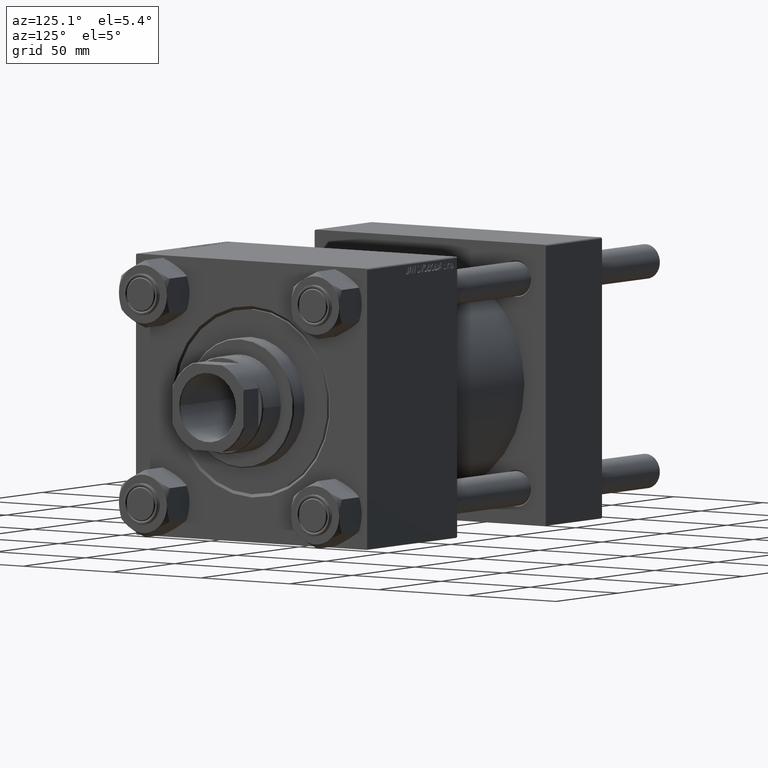
[diagram: clean part render]
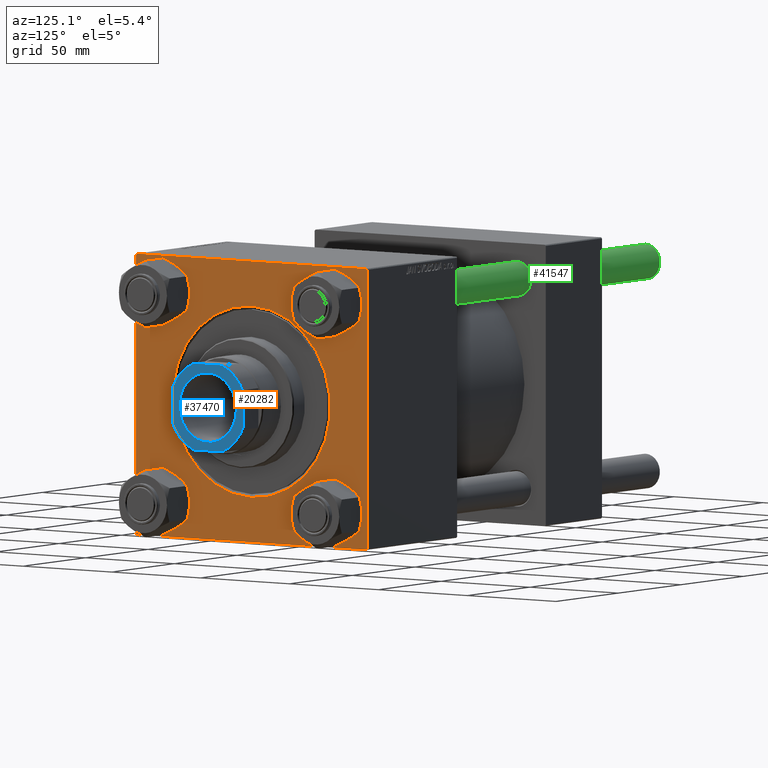
[diagram: same view with three faces highlighted in distinct colors, each labeled with its STEP entity id]
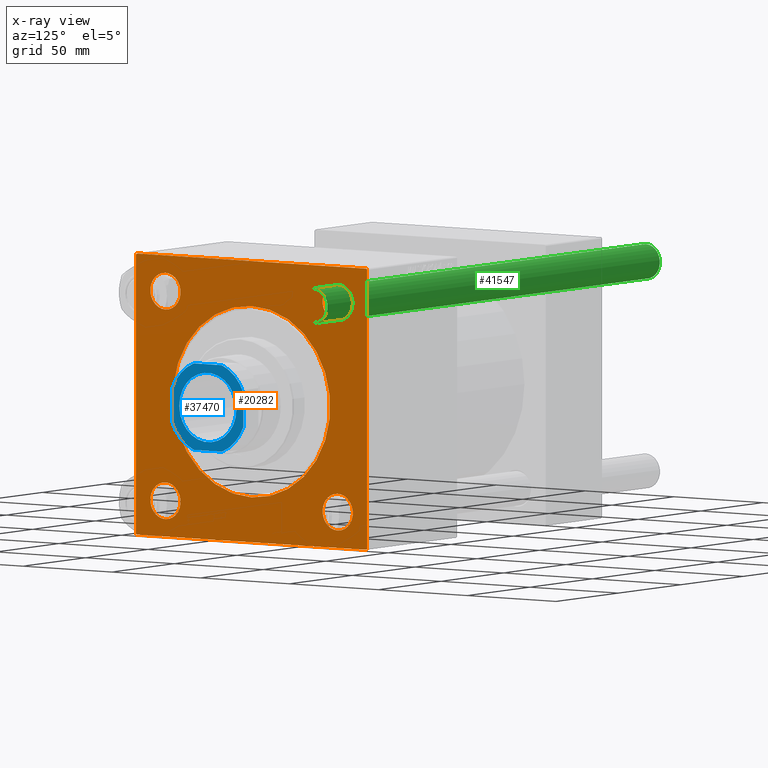
[diagram: x-ray of the same camera — body ghosted, the three highlighted faces saturated]
A machine part, auxiliary view with three faces highlighted in distinct colors.
The next image is the same camera in x-ray (body ghosted, the three faces saturated) — at least one of them is partly hidden behind the body in this view.
Their STEP definitions:

[orange] entity #20282 — the highlighted planar face has unit normal (-1, 0, 0).
#201 = DIRECTION ( 'NONE',  ( 0.000000000000000000, 0.000000000000000000, 1.000000000000000000 ) ) ;
#1098 = CIRCLE ( 'NONE', #7602, 8.499999999999923617 ) ;
#1130 = EDGE_CURVE ( 'NONE', #19694, #46335, #16287, .T. ) ;
#1205 = CARTESIAN_POINT ( 'NONE',  ( 188.0000000000000000, 0.000000000000000000, 0.000000000000000000 ) ) ;
#1799 = LINE ( 'NONE', #9942, #2994 ) ;
#1960 = DIRECTION ( 'NONE',  ( 0.000000000000000000, 0.000000000000000000, 1.000000000000000000 ) ) ;
#2092 = FACE_BOUND ( 'NONE', #37110, .T. ) ;
#2112 = CIRCLE ( 'NONE', #47588, 8.499999999999923617 ) ;
#2642 = VERTEX_POINT ( 'NONE', #31743 ) ;
#2658 = AXIS2_PLACEMENT_3D ( 'NONE', #38136, #3277, #18816 ) ;
#2994 = VECTOR ( 'NONE', #48610, 999.9999999999998863 ) ;
#3277 = DIRECTION ( 'NONE',  ( -1.000000000000000000, 0.000000000000000000, -0.000000000000000000 ) ) ;
#3331 = ORIENTED_EDGE ( 'NONE', *, *, #41484, .T. ) ;
#3597 = ORIENTED_EDGE ( 'NONE', *, *, #17213, .T. ) ;
#3835 = CARTESIAN_POINT ( 'NONE',  ( 188.0000000000000000, -48.44999999999999574, -48.45000000000003126 ) ) ;
#3882 = EDGE_LOOP ( 'NONE', ( #26951, #6696 ) ) ;
#4296 = ORIENTED_EDGE ( 'NONE', *, *, #35313, .T. ) ;
#4464 = ORIENTED_EDGE ( 'NONE', *, *, #11329, .F. ) ;
#4532 = DIRECTION ( 'NONE',  ( -1.000000000000000000, 0.000000000000000000, -0.000000000000000000 ) ) ;
#5250 = EDGE_CURVE ( 'NONE', #46935, #7343, #12743, .T. ) ;
#5371 = ORIENTED_EDGE ( 'NONE', *, *, #26042, .F. ) ;
#5759 = VECTOR ( 'NONE', #33260, 1000.000000000000000 ) ;
#5974 = VERTEX_POINT ( 'NONE', #17187 ) ;
#6082 = ORIENTED_EDGE ( 'NONE', *, *, #1130, .T. ) ;
#6139 = DIRECTION ( 'NONE',  ( 0.000000000000000000, 0.000000000000000000, 1.000000000000000000 ) ) ;
#6188 = CIRCLE ( 'NONE', #15951, 44.24999999999998579 ) ;
#6529 = CARTESIAN_POINT ( 'NONE',  ( 188.0000000000000000, 0.000000000000000000, -44.24999999999998579 ) ) ;
#6696 = ORIENTED_EDGE ( 'NONE', *, *, #42713, .T. ) ;
#6906 = ORIENTED_EDGE ( 'NONE', *, *, #9727, .T. ) ;
#7343 = VERTEX_POINT ( 'NONE', #37276 ) ;
#7602 = AXIS2_PLACEMENT_3D ( 'NONE', #32844, #24961, #8940 ) ;
#7996 = EDGE_LOOP ( 'NONE', ( #3331, #3597 ) ) ;
#8940 = DIRECTION ( 'NONE',  ( 0.000000000000000000, 0.000000000000000000, 1.000000000000000000 ) ) ;
#9242 = VERTEX_POINT ( 'NONE', #49786 ) ;
#9342 = DIRECTION ( 'NONE',  ( -1.000000000000000000, 0.000000000000000000, -0.000000000000000000 ) ) ;
#9727 = EDGE_CURVE ( 'NONE', #39888, #46935, #1799, .T. ) ;
#9942 = CARTESIAN_POINT ( 'NONE',  ( 188.0000000000000000, -64.99999999999998579, 64.50000000000008527 ) ) ;
#10225 = CARTESIAN_POINT ( 'NONE',  ( 188.0000000000000000, 0.000000000000000000, 0.000000000000000000 ) ) ;
#10269 = EDGE_LOOP ( 'NONE', ( #43818, #47771 ) ) ;
#10271 = CARTESIAN_POINT ( 'NONE',  ( 188.0000000000000000, 48.45000000000000995, 48.45000000000001705 ) ) ;
#10564 = CARTESIAN_POINT ( 'NONE',  ( 188.0000000000000000, 65.00000000000002842, -64.50000000000001421 ) ) ;
#10715 = ORIENTED_EDGE ( 'NONE', *, *, #11340, .T. ) ;
#10770 = LINE ( 'NONE', #17918, #41249 ) ;
#11282 = DIRECTION ( 'NONE',  ( 0.000000000000000000, 0.7071067811865279218, -0.7071067811865672237 ) ) ;
#11329 = EDGE_CURVE ( 'NONE', #19694, #41541, #10770, .T. ) ;
#11340 = EDGE_CURVE ( 'NONE', #46335, #39888, #41309, .T. ) ;
#11615 = DIRECTION ( 'NONE',  ( -1.000000000000000000, 0.000000000000000000, -0.000000000000000000 ) ) ;
#11886 = AXIS2_PLACEMENT_3D ( 'NONE', #3835, #34635, #42772 ) ;
#12618 = FACE_BOUND ( 'NONE', #3882, .T. ) ;
#12743 = LINE ( 'NONE', #42775, #26432 ) ;
#13331 = ORIENTED_EDGE ( 'NONE', *, *, #27420, .T. ) ;
#14079 = VECTOR ( 'NONE', #39439, 1000.000000000000000 ) ;
#14506 = AXIS2_PLACEMENT_3D ( 'NONE', #41734, #25475, #6139 ) ;
#14690 = DIRECTION ( 'NONE',  ( -1.000000000000000000, 0.000000000000000000, -0.000000000000000000 ) ) ;
#15458 = VERTEX_POINT ( 'NONE', #30278 ) ;
#15920 = CARTESIAN_POINT ( 'NONE',  ( 188.0000000000000000, -64.99999999999998579, 64.50000000000008527 ) ) ;
#15951 = AXIS2_PLACEMENT_3D ( 'NONE', #1205, #9342, #1960 ) ;
#15977 = CARTESIAN_POINT ( 'NONE',  ( 188.0000000000000000, -48.44999999999999574, 48.45000000000003126 ) ) ;
#16178 = DIRECTION ( 'NONE',  ( -1.000000000000000000, 0.000000000000000000, -0.000000000000000000 ) ) ;
#16287 = LINE ( 'NONE', #23682, #14079 ) ;
#17187 = CARTESIAN_POINT ( 'NONE',  ( 188.0000000000000000, 48.45000000000000995, 56.94999999999993889 ) ) ;
#17213 = EDGE_CURVE ( 'NONE', #5974, #32960, #42162, .T. ) ;
#17918 = CARTESIAN_POINT ( 'NONE',  ( 188.0000000000000000, 65.00000000000002842, 65.00000000000001421 ) ) ;
#17985 = ORIENTED_EDGE ( 'NONE', *, *, #29116, .T. ) ;
#17986 = CARTESIAN_POINT ( 'NONE',  ( 188.0000000000000000, 65.00000000000002842, -64.99999999999998579 ) ) ;
#18271 = DIRECTION ( 'NONE',  ( 0.000000000000000000, 0.000000000000000000, 1.000000000000000000 ) ) ;
#18538 = VECTOR ( 'NONE', #19719, 1000.000000000000000 ) ;
#18816 = DIRECTION ( 'NONE',  ( 0.000000000000000000, 0.000000000000000000, 1.000000000000000000 ) ) ;
#19631 = DIRECTION ( 'NONE',  ( 0.000000000000000000, 0.000000000000000000, -1.000000000000000000 ) ) ;
#19694 = VERTEX_POINT ( 'NONE', #31525 ) ;
#19714 = CIRCLE ( 'NONE', #22149, 8.499999999999923617 ) ;
#19719 = DIRECTION ( 'NONE',  ( -0.000000000000000000, 0.7071067811865671127, 0.7071067811865279218 ) ) ;
#20269 = FACE_BOUND ( 'NONE', #24676, .T. ) ;
#20282 = ADVANCED_FACE ( 'NONE', ( #12618, #2092, #29574, #20269, #45091, #25011 ), #32889, .F. ) ;
#20439 = VERTEX_POINT ( 'NONE', #31331 ) ;
#20685 = VERTEX_POINT ( 'NONE', #35842 ) ;
#20959 = VECTOR ( 'NONE', #21993, 1000.000000000000000 ) ;
#21745 = CARTESIAN_POINT ( 'NONE',  ( 188.0000000000000000, 65.00000000000002842, 65.00000000000001421 ) ) ;
#21941 = AXIS2_PLACEMENT_3D ( 'NONE', #10225, #41273, #37452 ) ;
#21993 = DIRECTION ( 'NONE',  ( 0.000000000000000000, -1.000000000000000000, -1.067522139062650425E-16 ) ) ;
#22149 = AXIS2_PLACEMENT_3D ( 'NONE', #15977, #4532, #201 ) ;
#22313 = LINE ( 'NONE', #17986, #5759 ) ;
#23135 = ORIENTED_EDGE ( 'NONE', *, *, #31579, .T. ) ;
#23682 = CARTESIAN_POINT ( 'NONE',  ( 188.0000000000000000, 64.50000000000005684, 65.00000000000001421 ) ) ;
#24676 = EDGE_LOOP ( 'NONE', ( #42390, #23135 ) ) ;
#24677 = CIRCLE ( 'NONE', #39313, 44.24999999999998579 ) ;
#24961 = DIRECTION ( 'NONE',  ( -1.000000000000000000, 0.000000000000000000, -0.000000000000000000 ) ) ;
#25011 = FACE_OUTER_BOUND ( 'NONE', #29803, .T. ) ;
#25475 = DIRECTION ( 'NONE',  ( -1.000000000000000000, 0.000000000000000000, -0.000000000000000000 ) ) ;
#26042 = EDGE_CURVE ( 'NONE', #34308, #41234, #22313, .T. ) ;
#26302 = DIRECTION ( 'NONE',  ( 0.000000000000000000, 0.000000000000000000, -1.000000000000000000 ) ) ;
#26432 = VECTOR ( 'NONE', #19631, 1000.000000000000000 ) ;
#26951 = ORIENTED_EDGE ( 'NONE', *, *, #28934, .T. ) ;
#27323 = CIRCLE ( 'NONE', #11886, 8.499999999999923617 ) ;
#27420 = EDGE_CURVE ( 'NONE', #7343, #41234, #43076, .T. ) ;
#27634 = CARTESIAN_POINT ( 'NONE',  ( 188.0000000000000000, 48.45000000000000995, 39.95000000000008811 ) ) ;
#28685 = CIRCLE ( 'NONE', #47341, 8.499999999999923617 ) ;
#28934 = EDGE_CURVE ( 'NONE', #15458, #36130, #49795, .T. ) ;
#29116 = EDGE_CURVE ( 'NONE', #40505, #9242, #28685, .T. ) ;
#29372 = DIRECTION ( 'NONE',  ( -1.000000000000000000, 0.000000000000000000, -0.000000000000000000 ) ) ;
#29444 = ORIENTED_EDGE ( 'NONE', *, *, #49919, .T. ) ;
#29574 = FACE_BOUND ( 'NONE', #7996, .T. ) ;
#29803 = EDGE_LOOP ( 'NONE', ( #32452, #13331, #5371, #29444, #4464, #6082, #10715, #6906 ) ) ;
#30278 = CARTESIAN_POINT ( 'NONE',  ( 188.0000000000000000, -48.44999999999999574, -56.94999999999995310 ) ) ;
#30712 = CARTESIAN_POINT ( 'NONE',  ( 188.0000000000000000, 48.45000000000000995, -48.45000000000001705 ) ) ;
#30872 = CARTESIAN_POINT ( 'NONE',  ( 188.0000000000000000, -64.50000000000002842, -65.00000000000001421 ) ) ;
#31331 = CARTESIAN_POINT ( 'NONE',  ( 188.0000000000000000, -48.44999999999999574, 39.95000000000010232 ) ) ;
#31525 = CARTESIAN_POINT ( 'NONE',  ( 188.0000000000000000, 65.00000000000002842, 64.50000000000001421 ) ) ;
#31579 = EDGE_CURVE ( 'NONE', #2642, #20439, #19714, .T. ) ;
#31743 = CARTESIAN_POINT ( 'NONE',  ( 188.0000000000000000, -48.44999999999999574, 56.94999999999995310 ) ) ;
#32452 = ORIENTED_EDGE ( 'NONE', *, *, #5250, .T. ) ;
#32844 = CARTESIAN_POINT ( 'NONE',  ( 188.0000000000000000, 48.45000000000000995, -48.45000000000001705 ) ) ;
#32889 = PLANE ( 'NONE',  #21941 ) ;
#32960 = VERTEX_POINT ( 'NONE', #27634 ) ;
#33260 = DIRECTION ( 'NONE',  ( 0.000000000000000000, -1.000000000000000000, -2.135044278125300850E-16 ) ) ;
#34308 = VERTEX_POINT ( 'NONE', #48406 ) ;
#34635 = DIRECTION ( 'NONE',  ( -1.000000000000000000, 0.000000000000000000, -0.000000000000000000 ) ) ;
#34901 = CARTESIAN_POINT ( 'NONE',  ( 188.0000000000000000, 48.45000000000000995, -39.95000000000008811 ) ) ;
#35106 = CARTESIAN_POINT ( 'NONE',  ( 188.0000000000000000, -64.50000000000008527, 65.00000000000000000 ) ) ;
#35313 = EDGE_CURVE ( 'NONE', #9242, #40505, #1098, .T. ) ;
#35508 = CARTESIAN_POINT ( 'NONE',  ( 188.0000000000000000, -64.50000000000002842, -65.00000000000001421 ) ) ;
#35587 = EDGE_CURVE ( 'NONE', #41002, #20685, #24677, .T. ) ;
#35842 = CARTESIAN_POINT ( 'NONE',  ( 188.0000000000000000, 5.419062086227035828E-15, 44.24999999999998579 ) ) ;
#36130 = VERTEX_POINT ( 'NONE', #41948 ) ;
#36655 = VECTOR ( 'NONE', #11282, 1000.000000000000000 ) ;
#37110 = EDGE_LOOP ( 'NONE', ( #4296, #17985 ) ) ;
#37276 = CARTESIAN_POINT ( 'NONE',  ( 188.0000000000000000, -64.99999999999998579, -64.50000000000002842 ) ) ;
#37452 = DIRECTION ( 'NONE',  ( -0.000000000000000000, 0.000000000000000000, 1.000000000000000000 ) ) ;
#37498 = DIRECTION ( 'NONE',  ( 0.000000000000000000, 0.000000000000000000, 1.000000000000000000 ) ) ;
#38136 = CARTESIAN_POINT ( 'NONE',  ( 188.0000000000000000, -48.44999999999999574, -48.45000000000003126 ) ) ;
#39143 = EDGE_CURVE ( 'NONE', #20439, #2642, #41011, .T. ) ;
#39313 = AXIS2_PLACEMENT_3D ( 'NONE', #40506, #16178, #42900 ) ;
#39439 = DIRECTION ( 'NONE',  ( 0.000000000000000000, -0.7071067811865279218, 0.7071067811865671127 ) ) ;
#39888 = VERTEX_POINT ( 'NONE', #35106 ) ;
#40505 = VERTEX_POINT ( 'NONE', #34901 ) ;
#40506 = CARTESIAN_POINT ( 'NONE',  ( 188.0000000000000000, 0.000000000000000000, 0.000000000000000000 ) ) ;
#41002 = VERTEX_POINT ( 'NONE', #6529 ) ;
#41011 = CIRCLE ( 'NONE', #44288, 8.499999999999923617 ) ;
#41234 = VERTEX_POINT ( 'NONE', #35508 ) ;
#41249 = VECTOR ( 'NONE', #26302, 1000.000000000000000 ) ;
#41273 = DIRECTION ( 'NONE',  ( -1.000000000000000000, 0.000000000000000000, -0.000000000000000000 ) ) ;
#41309 = LINE ( 'NONE', #21745, #20959 ) ;
#41484 = EDGE_CURVE ( 'NONE', #32960, #5974, #2112, .T. ) ;
#41541 = VERTEX_POINT ( 'NONE', #47326 ) ;
#41734 = CARTESIAN_POINT ( 'NONE',  ( 188.0000000000000000, 48.45000000000000995, 48.45000000000001705 ) ) ;
#41948 = CARTESIAN_POINT ( 'NONE',  ( 188.0000000000000000, -48.44999999999999574, -39.95000000000010232 ) ) ;
#42020 = EDGE_CURVE ( 'NONE', #20685, #41002, #6188, .T. ) ;
#42162 = CIRCLE ( 'NONE', #14506, 8.499999999999923617 ) ;
#42390 = ORIENTED_EDGE ( 'NONE', *, *, #39143, .T. ) ;
#42649 = DIRECTION ( 'NONE',  ( 0.000000000000000000, 0.000000000000000000, 1.000000000000000000 ) ) ;
#42713 = EDGE_CURVE ( 'NONE', #36130, #15458, #27323, .T. ) ;
#42772 = DIRECTION ( 'NONE',  ( 0.000000000000000000, 0.000000000000000000, 1.000000000000000000 ) ) ;
#42775 = CARTESIAN_POINT ( 'NONE',  ( 188.0000000000000000, -64.99999999999998579, 65.00000000000000000 ) ) ;
#42900 = DIRECTION ( 'NONE',  ( 0.000000000000000000, 0.000000000000000000, 1.000000000000000000 ) ) ;
#43076 = LINE ( 'NONE', #30872, #36655 ) ;
#43818 = ORIENTED_EDGE ( 'NONE', *, *, #35587, .T. ) ;
#44288 = AXIS2_PLACEMENT_3D ( 'NONE', #45244, #14690, #18271 ) ;
#45091 = FACE_BOUND ( 'NONE', #10269, .T. ) ;
#45244 = CARTESIAN_POINT ( 'NONE',  ( 188.0000000000000000, -48.44999999999999574, 48.45000000000003126 ) ) ;
#45427 = LINE ( 'NONE', #10564, #18538 ) ;
#46335 = VERTEX_POINT ( 'NONE', #48577 ) ;
#46935 = VERTEX_POINT ( 'NONE', #15920 ) ;
#47326 = CARTESIAN_POINT ( 'NONE',  ( 188.0000000000000000, 65.00000000000002842, -64.50000000000001421 ) ) ;
#47341 = AXIS2_PLACEMENT_3D ( 'NONE', #30712, #11615, #42649 ) ;
#47588 = AXIS2_PLACEMENT_3D ( 'NONE', #10271, #29372, #37498 ) ;
#47771 = ORIENTED_EDGE ( 'NONE', *, *, #42020, .T. ) ;
#48406 = CARTESIAN_POINT ( 'NONE',  ( 188.0000000000000000, 64.50000000000002842, -64.99999999999998579 ) ) ;
#48577 = CARTESIAN_POINT ( 'NONE',  ( 188.0000000000000000, 64.50000000000005684, 65.00000000000001421 ) ) ;
#48610 = DIRECTION ( 'NONE',  ( -0.000000000000000000, -0.7071067811865376918, -0.7071067811865574537 ) ) ;
#49786 = CARTESIAN_POINT ( 'NONE',  ( 188.0000000000000000, 48.45000000000000995, -56.94999999999993889 ) ) ;
#49795 = CIRCLE ( 'NONE', #2658, 8.499999999999923617 ) ;
#49919 = EDGE_CURVE ( 'NONE', #34308, #41541, #45427, .T. ) ;

[blue] entity #37470 — the highlighted planar face has unit normal (1, 0, -0).
#750 = DIRECTION ( 'NONE',  ( 0.000000000000000000, -0.000000000000000000, -1.000000000000000000 ) ) ;
#2476 = CIRCLE ( 'NONE', #17930, 21.50000000000001066 ) ;
#2534 = DIRECTION ( 'NONE',  ( 1.734723475976807094E-16, -1.000000000000000000, 0.000000000000000000 ) ) ;
#4815 = CARTESIAN_POINT ( 'NONE',  ( 0.000000000000000000, 0.000000000000000000, 178.0000000000000284 ) ) ;
#5056 = DIRECTION ( 'NONE',  ( 1.000000000000000000, 0.000000000000000000, 0.000000000000000000 ) ) ;
#5229 = VERTEX_POINT ( 'NONE', #31330 ) ;
#5778 = CARTESIAN_POINT ( 'NONE',  ( 0.000000000000000000, 0.000000000000000000, 178.0000000000000284 ) ) ;
#6623 = AXIS2_PLACEMENT_3D ( 'NONE', #11630, #27153, #42667 ) ;
#7334 = ORIENTED_EDGE ( 'NONE', *, *, #26202, .T. ) ;
#7625 = DIRECTION ( 'NONE',  ( 1.000000000000000000, 0.000000000000000000, 0.000000000000000000 ) ) ;
#7851 = CIRCLE ( 'NONE', #29827, 16.05000000000000782 ) ;
#8048 = VERTEX_POINT ( 'NONE', #17061 ) ;
#8063 = EDGE_LOOP ( 'NONE', ( #26466, #7334, #19994, #25741, #8916, #12696, #37254, #50151 ) ) ;
#8217 = DIRECTION ( 'NONE',  ( 1.000000000000000000, 0.000000000000000000, 0.000000000000000000 ) ) ;
#8263 = CIRCLE ( 'NONE', #6623, 16.05000000000000782 ) ;
#8916 = ORIENTED_EDGE ( 'NONE', *, *, #38285, .T. ) ;
#10675 = LINE ( 'NONE', #41713, #18281 ) ;
#11061 = PLANE ( 'NONE',  #34481 ) ;
#11209 = CIRCLE ( 'NONE', #33163, 21.49999999999996447 ) ;
#11374 = DIRECTION ( 'NONE',  ( 1.000000000000000000, 0.000000000000000000, 0.000000000000000000 ) ) ;
#11630 = CARTESIAN_POINT ( 'NONE',  ( 0.000000000000000000, 0.000000000000000000, 178.0000000000000284 ) ) ;
#12696 = ORIENTED_EDGE ( 'NONE', *, *, #47694, .T. ) ;
#13662 = CARTESIAN_POINT ( 'NONE',  ( -7.889866919029745240, -20.00000000000000000, 178.0000000000000284 ) ) ;
#13668 = VERTEX_POINT ( 'NONE', #13662 ) ;
#14037 = DIRECTION ( 'NONE',  ( 1.000000000000000000, 0.000000000000000000, 0.000000000000000000 ) ) ;
#15031 = VERTEX_POINT ( 'NONE', #39005 ) ;
#15612 = DIRECTION ( 'NONE',  ( 1.000000000000000000, 0.000000000000000000, 0.000000000000000000 ) ) ;
#16356 = EDGE_CURVE ( 'NONE', #8048, #5229, #11209, .T. ) ;
#17061 = CARTESIAN_POINT ( 'NONE',  ( 7.889866919029648429, -20.00000000000000000, 178.0000000000000284 ) ) ;
#17293 = LINE ( 'NONE', #32815, #17588 ) ;
#17352 = VERTEX_POINT ( 'NONE', #30545 ) ;
#17588 = VECTOR ( 'NONE', #28507, 1000.000000000000000 ) ;
#17930 = AXIS2_PLACEMENT_3D ( 'NONE', #5778, #32998, #21308 ) ;
#18214 = VECTOR ( 'NONE', #14037, 1000.000000000000000 ) ;
#18281 = VECTOR ( 'NONE', #2534, 1000.000000000000000 ) ;
#19994 = ORIENTED_EDGE ( 'NONE', *, *, #31866, .T. ) ;
#21308 = DIRECTION ( 'NONE',  ( 1.000000000000000000, 0.000000000000000000, 0.000000000000000000 ) ) ;
#22782 = FACE_OUTER_BOUND ( 'NONE', #8063, .T. ) ;
#22841 = CARTESIAN_POINT ( 'NONE',  ( 0.000000000000000000, 0.000000000000000000, 178.0000000000000284 ) ) ;
#23272 = CARTESIAN_POINT ( 'NONE',  ( 0.000000000000000000, 0.000000000000000000, 178.0000000000000284 ) ) ;
#24440 = EDGE_CURVE ( 'NONE', #38400, #46957, #8263, .T. ) ;
#25741 = ORIENTED_EDGE ( 'NONE', *, *, #31403, .T. ) ;
#26058 = ORIENTED_EDGE ( 'NONE', *, *, #43796, .T. ) ;
#26202 = EDGE_CURVE ( 'NONE', #26532, #17352, #2476, .T. ) ;
#26466 = ORIENTED_EDGE ( 'NONE', *, *, #46323, .T. ) ;
#26532 = VERTEX_POINT ( 'NONE', #42069 ) ;
#26604 = AXIS2_PLACEMENT_3D ( 'NONE', #22841, #33339, #11374 ) ;
#27153 = DIRECTION ( 'NONE',  ( 0.000000000000000000, -0.000000000000000000, -1.000000000000000000 ) ) ;
#28507 = DIRECTION ( 'NONE',  ( -1.734723475976807094E-16, 1.000000000000000000, -0.000000000000000000 ) ) ;
#29827 = AXIS2_PLACEMENT_3D ( 'NONE', #4815, #750, #5056 ) ;
#30545 = CARTESIAN_POINT ( 'NONE',  ( 7.889866919029781656, 20.00000000000000000, 178.0000000000000284 ) ) ;
#31037 = CARTESIAN_POINT ( 'NONE',  ( 0.000000000000000000, 0.000000000000000000, 178.0000000000000284 ) ) ;
#31330 = CARTESIAN_POINT ( 'NONE',  ( 20.00000000000000000, -7.889866919029643100, 178.0000000000000284 ) ) ;
#31403 = EDGE_CURVE ( 'NONE', #15031, #44642, #33512, .T. ) ;
#31866 = EDGE_CURVE ( 'NONE', #17352, #15031, #34024, .T. ) ;
#32674 = VECTOR ( 'NONE', #34269, 1000.000000000000000 ) ;
#32815 = CARTESIAN_POINT ( 'NONE',  ( 19.99999999999999645, 20.00000000000000000, 178.0000000000000284 ) ) ;
#32998 = DIRECTION ( 'NONE',  ( -0.000000000000000000, 0.000000000000000000, 1.000000000000000000 ) ) ;
#33163 = AXIS2_PLACEMENT_3D ( 'NONE', #31037, #46055, #7625 ) ;
#33248 = CARTESIAN_POINT ( 'NONE',  ( -20.00000000000000000, -7.889866919029748793, 178.0000000000000284 ) ) ;
#33339 = DIRECTION ( 'NONE',  ( -0.000000000000000000, 0.000000000000000000, 1.000000000000000000 ) ) ;
#33392 = CARTESIAN_POINT ( 'NONE',  ( -19.99999999999999645, -20.00000000000000000, 178.0000000000000284 ) ) ;
#33512 = CIRCLE ( 'NONE', #37569, 21.50000000000000000 ) ;
#34024 = LINE ( 'NONE', #41392, #32674 ) ;
#34269 = DIRECTION ( 'NONE',  ( -1.000000000000000000, -0.000000000000000000, -0.000000000000000000 ) ) ;
#34481 = AXIS2_PLACEMENT_3D ( 'NONE', #23272, #38779, #15612 ) ;
#34769 = CARTESIAN_POINT ( 'NONE',  ( -16.05000000000000782, 1.965558112631502993E-15, 178.0000000000000284 ) ) ;
#35769 = EDGE_CURVE ( 'NONE', #13668, #8048, #41758, .T. ) ;
#36183 = EDGE_LOOP ( 'NONE', ( #43629, #26058 ) ) ;
#36881 = CARTESIAN_POINT ( 'NONE',  ( 0.000000000000000000, 0.000000000000000000, 178.0000000000000284 ) ) ;
#37254 = ORIENTED_EDGE ( 'NONE', *, *, #35769, .T. ) ;
#37470 = ADVANCED_FACE ( 'NONE', ( #42854, #22782 ), #11061, .T. ) ;
#37569 = AXIS2_PLACEMENT_3D ( 'NONE', #36881, #40945, #8217 ) ;
#38285 = EDGE_CURVE ( 'NONE', #44642, #40253, #10675, .T. ) ;
#38400 = VERTEX_POINT ( 'NONE', #42470 ) ;
#38779 = DIRECTION ( 'NONE',  ( -0.000000000000000000, 0.000000000000000000, 1.000000000000000000 ) ) ;
#39005 = CARTESIAN_POINT ( 'NONE',  ( -7.889866919029755898, 20.00000000000000000, 178.0000000000000284 ) ) ;
#40253 = VERTEX_POINT ( 'NONE', #33248 ) ;
#40945 = DIRECTION ( 'NONE',  ( -0.000000000000000000, 0.000000000000000000, 1.000000000000000000 ) ) ;
#41392 = CARTESIAN_POINT ( 'NONE',  ( -20.00000000000000355, 20.00000000000000000, 178.0000000000000284 ) ) ;
#41713 = CARTESIAN_POINT ( 'NONE',  ( -20.00000000000000355, 20.00000000000000000, 178.0000000000000284 ) ) ;
#41758 = LINE ( 'NONE', #33392, #18214 ) ;
#42069 = CARTESIAN_POINT ( 'NONE',  ( 20.00000000000000000, 7.889866919029785208, 178.0000000000000284 ) ) ;
#42470 = CARTESIAN_POINT ( 'NONE',  ( 16.05000000000000782, 0.000000000000000000, 178.0000000000000284 ) ) ;
#42667 = DIRECTION ( 'NONE',  ( 1.000000000000000000, 0.000000000000000000, 0.000000000000000000 ) ) ;
#42854 = FACE_BOUND ( 'NONE', #36183, .T. ) ;
#43629 = ORIENTED_EDGE ( 'NONE', *, *, #24440, .T. ) ;
#43796 = EDGE_CURVE ( 'NONE', #46957, #38400, #7851, .T. ) ;
#44642 = VERTEX_POINT ( 'NONE', #47557 ) ;
#46055 = DIRECTION ( 'NONE',  ( -0.000000000000000000, 0.000000000000000000, 1.000000000000000000 ) ) ;
#46323 = EDGE_CURVE ( 'NONE', #5229, #26532, #17293, .T. ) ;
#46957 = VERTEX_POINT ( 'NONE', #34769 ) ;
#47557 = CARTESIAN_POINT ( 'NONE',  ( -20.00000000000000000, 7.889866919029752346, 178.0000000000000284 ) ) ;
#47694 = EDGE_CURVE ( 'NONE', #40253, #13668, #48524, .T. ) ;
#48524 = CIRCLE ( 'NONE', #26604, 21.50000000000000000 ) ;
#50151 = ORIENTED_EDGE ( 'NONE', *, *, #16356, .T. ) ;

[green] entity #41547 — the highlighted cylindrical surface (edge-blend (fillet) strip) has radius 8 mm, axis along (-1, -0, -0).
#1535 = DIRECTION ( 'NONE',  ( 1.000000000000000000, 0.000000000000000000, 0.000000000000000000 ) ) ;
#1821 = CIRCLE ( 'NONE', #31100, 8.000000000000000000 ) ;
#2750 = CARTESIAN_POINT ( 'NONE',  ( -8.000000000000000000, 0.000000000000000000, 267.0000000000000000 ) ) ;
#4840 = DIRECTION ( 'NONE',  ( -1.000000000000000000, 0.000000000000000000, 0.000000000000000000 ) ) ;
#8407 = CYLINDRICAL_SURFACE ( 'NONE', #38645, 8.000000000000000000 ) ;
#10724 = CARTESIAN_POINT ( 'NONE',  ( -8.000000000000000000, 0.000000000000000000, 266.5000000000000568 ) ) ;
#11056 = ORIENTED_EDGE ( 'NONE', *, *, #32543, .T. ) ;
#13741 = DIRECTION ( 'NONE',  ( 0.000000000000000000, 0.000000000000000000, -1.000000000000000000 ) ) ;
#13957 = CIRCLE ( 'NONE', #42403, 8.000000000000000000 ) ;
#15445 = CARTESIAN_POINT ( 'NONE',  ( 8.000000000000000000, 9.797174393178825657E-16, 267.0000000000000000 ) ) ;
#19313 = VERTEX_POINT ( 'NONE', #10724 ) ;
#20132 = CARTESIAN_POINT ( 'NONE',  ( 0.000000000000000000, 0.000000000000000000, 267.0000000000000000 ) ) ;
#22716 = CARTESIAN_POINT ( 'NONE',  ( 8.000000000000000000, 9.797174393178825657E-16, 0.5000000000000559552 ) ) ;
#22859 = LINE ( 'NONE', #15445, #46748 ) ;
#23939 = FACE_OUTER_BOUND ( 'NONE', #34483, .T. ) ;
#24345 = EDGE_CURVE ( 'NONE', #34354, #37073, #13957, .T. ) ;
#24428 = CARTESIAN_POINT ( 'NONE',  ( 0.000000000000000000, 0.000000000000000000, 0.5000000000000559552 ) ) ;
#26635 = VERTEX_POINT ( 'NONE', #35941 ) ;
#27998 = DIRECTION ( 'NONE',  ( -0.000000000000000000, -0.000000000000000000, 1.000000000000000000 ) ) ;
#30583 = EDGE_CURVE ( 'NONE', #19313, #37073, #41932, .T. ) ;
#31100 = AXIS2_PLACEMENT_3D ( 'NONE', #33338, #13741, #1535 ) ;
#32543 = EDGE_CURVE ( 'NONE', #19313, #26635, #1821, .T. ) ;
#33338 = CARTESIAN_POINT ( 'NONE',  ( 0.000000000000000000, 0.000000000000000000, 266.5000000000000568 ) ) ;
#34354 = VERTEX_POINT ( 'NONE', #22716 ) ;
#34483 = EDGE_LOOP ( 'NONE', ( #11056, #43193, #42650, #38315 ) ) ;
#35941 = CARTESIAN_POINT ( 'NONE',  ( 8.000000000000000000, 9.797174393178825657E-16, 266.5000000000000568 ) ) ;
#37073 = VERTEX_POINT ( 'NONE', #41404 ) ;
#37864 = DIRECTION ( 'NONE',  ( -0.000000000000000000, -0.000000000000000000, -1.000000000000000000 ) ) ;
#38315 = ORIENTED_EDGE ( 'NONE', *, *, #30583, .F. ) ;
#38645 = AXIS2_PLACEMENT_3D ( 'NONE', #20132, #39443, #4840 ) ;
#39330 = EDGE_CURVE ( 'NONE', #26635, #34354, #22859, .T. ) ;
#39443 = DIRECTION ( 'NONE',  ( -0.000000000000000000, -0.000000000000000000, -1.000000000000000000 ) ) ;
#39932 = DIRECTION ( 'NONE',  ( 1.000000000000000000, 0.000000000000000000, 0.000000000000000000 ) ) ;
#41404 = CARTESIAN_POINT ( 'NONE',  ( -8.000000000000000000, 0.000000000000000000, 0.5000000000000559552 ) ) ;
#41547 = ADVANCED_FACE ( 'NONE', ( #23939 ), #8407, .T. ) ;
#41932 = LINE ( 'NONE', #2750, #42404 ) ;
#42403 = AXIS2_PLACEMENT_3D ( 'NONE', #24428, #27998, #39932 ) ;
#42404 = VECTOR ( 'NONE', #37864, 1000.000000000000000 ) ;
#42422 = DIRECTION ( 'NONE',  ( -0.000000000000000000, -0.000000000000000000, -1.000000000000000000 ) ) ;
#42650 = ORIENTED_EDGE ( 'NONE', *, *, #24345, .T. ) ;
#43193 = ORIENTED_EDGE ( 'NONE', *, *, #39330, .T. ) ;
#46748 = VECTOR ( 'NONE', #42422, 1000.000000000000000 ) ;